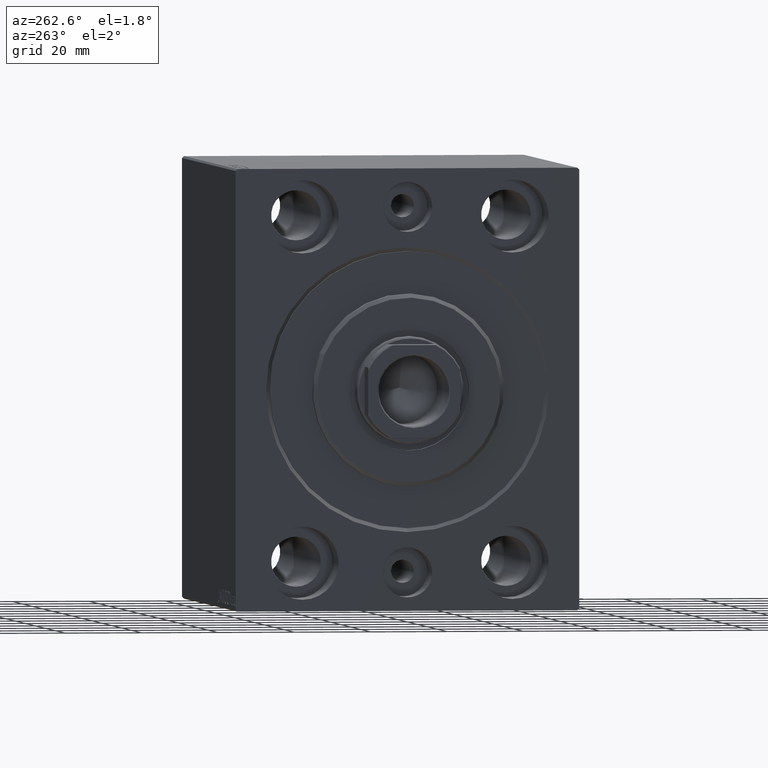
[diagram: clean part render]
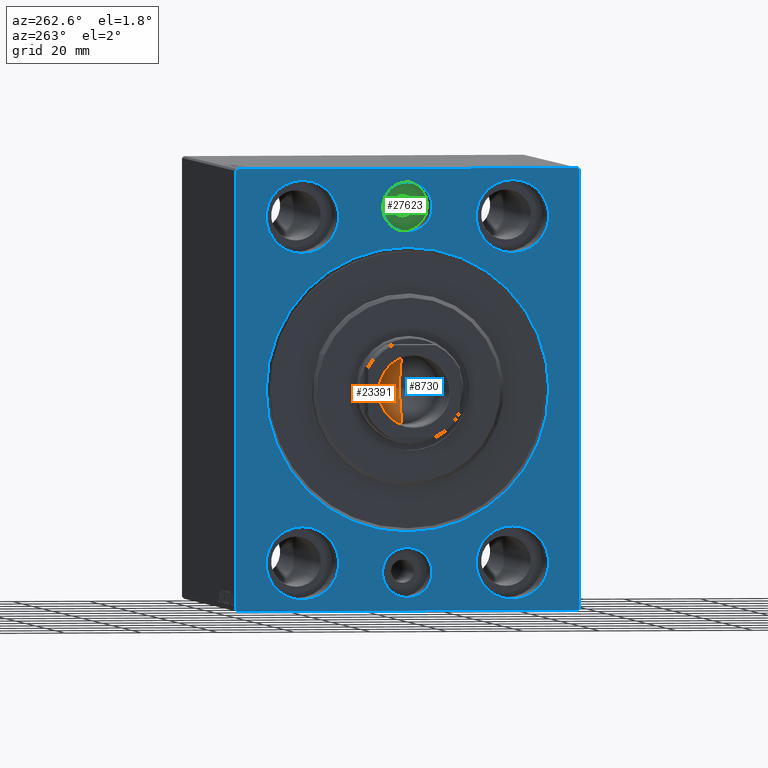
[diagram: same view with three faces highlighted in distinct colors, each labeled with its STEP entity id]
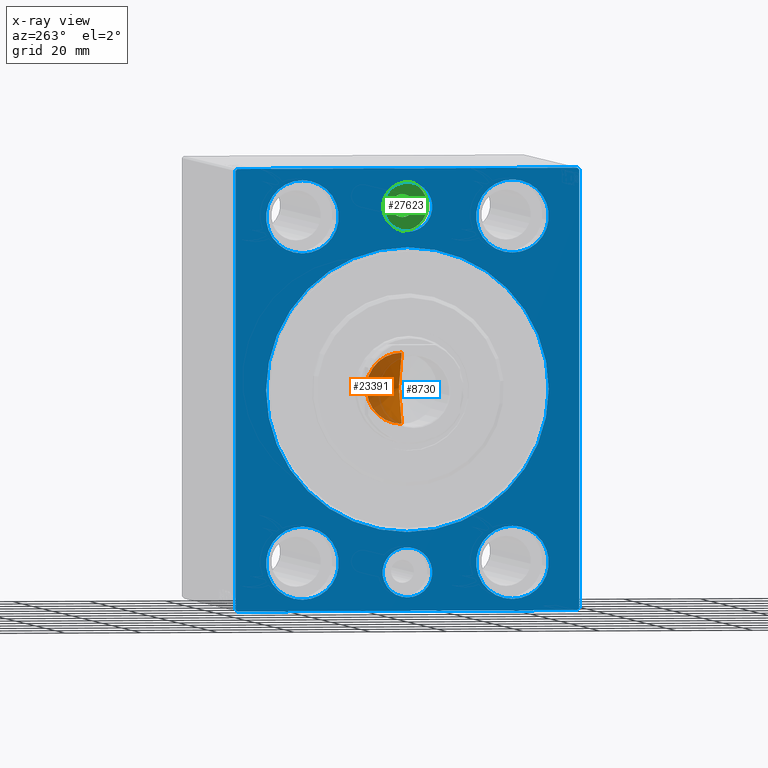
[diagram: x-ray of the same camera — body ghosted, the three highlighted faces saturated]
A machine part, auxiliary view with three faces highlighted in distinct colors.
The next image is the same camera in x-ray (body ghosted, the three faces saturated) — at least one of them is partly hidden behind the body in this view.
Their STEP definitions:

[orange] entity #23391 — the highlighted conical surface has half-angle 59 deg.
#786 = CARTESIAN_POINT ( 'NONE',  ( -6.793016015247754405E-15, 0.000000000000000000, 73.44203927399506426 ) ) ;
#4714 = CARTESIAN_POINT ( 'NONE',  ( 0.000000000000000000, 0.000000000000000000, 79.00000000000001421 ) ) ;
#4899 = CARTESIAN_POINT ( 'NONE',  ( 9.249999999999994671, 0.000000000000000000, 79.00000000000001421 ) ) ;
#6097 = CIRCLE ( 'NONE', #7571, 9.249999999999994671 ) ;
#7571 = AXIS2_PLACEMENT_3D ( 'NONE', #4714, #28193, #15127 ) ;
#8041 = DIRECTION ( 'NONE',  ( 0.8571673007021113344, 0.000000000000000000, 0.5150380749100558209 ) ) ;
#8346 = CARTESIAN_POINT ( 'NONE',  ( 0.000000000000000000, 0.000000000000000000, 79.00000000000001421 ) ) ;
#8839 = EDGE_CURVE ( 'NONE', #18739, #40652, #38784, .T. ) ;
#11118 = ORIENTED_EDGE ( 'NONE', *, *, #40584, .T. ) ;
#13972 = ORIENTED_EDGE ( 'NONE', *, *, #31500, .F. ) ;
#14583 = ORIENTED_EDGE ( 'NONE', *, *, #8839, .T. ) ;
#14916 = CARTESIAN_POINT ( 'NONE',  ( 9.249999999999994671, 0.000000000000000000, 79.00000000000001421 ) ) ;
#15127 = DIRECTION ( 'NONE',  ( 1.000000000000000000, 0.000000000000000000, 0.000000000000000000 ) ) ;
#15668 = VECTOR ( 'NONE', #8041, 1000.000000000000000 ) ;
#17538 = LINE ( 'NONE', #30836, #19331 ) ;
#18739 = VERTEX_POINT ( 'NONE', #786 ) ;
#19240 = CONICAL_SURFACE ( 'NONE', #41174, 9.249999999999994671, 1.029744258676652535 ) ;
#19331 = VECTOR ( 'NONE', #28154, 1000.000000000000000 ) ;
#21860 = DIRECTION ( 'NONE',  ( -0.000000000000000000, -0.000000000000000000, 1.000000000000000000 ) ) ;
#23391 = ADVANCED_FACE ( 'NONE', ( #26263 ), #19240, .F. ) ;
#26263 = FACE_OUTER_BOUND ( 'NONE', #42875, .T. ) ;
#28154 = DIRECTION ( 'NONE',  ( -0.8571673007021113344, 1.049727191138617463E-16, 0.5150380749100558209 ) ) ;
#28193 = DIRECTION ( 'NONE',  ( -0.000000000000000000, -0.000000000000000000, 1.000000000000000000 ) ) ;
#30836 = CARTESIAN_POINT ( 'NONE',  ( -9.249999999999994671, 1.132798289211300909E-15, 79.00000000000001421 ) ) ;
#31500 = EDGE_CURVE ( 'NONE', #18739, #40047, #17538, .T. ) ;
#35170 = CARTESIAN_POINT ( 'NONE',  ( -9.249999999999994671, 1.132798289211300909E-15, 79.00000000000001421 ) ) ;
#35575 = DIRECTION ( 'NONE',  ( 1.000000000000000000, 0.000000000000000000, 0.000000000000000000 ) ) ;
#38784 = LINE ( 'NONE', #4899, #15668 ) ;
#40047 = VERTEX_POINT ( 'NONE', #35170 ) ;
#40584 = EDGE_CURVE ( 'NONE', #40652, #40047, #6097, .T. ) ;
#40652 = VERTEX_POINT ( 'NONE', #14916 ) ;
#41174 = AXIS2_PLACEMENT_3D ( 'NONE', #8346, #21860, #35575 ) ;
#42875 = EDGE_LOOP ( 'NONE', ( #13972, #14583, #11118 ) ) ;

[blue] entity #8730 — the highlighted planar face has unit normal (1, 0, 0).
#274 = FACE_BOUND ( 'NONE', #2314, .T. ) ;
#555 = EDGE_CURVE ( 'NONE', #18751, #18843, #31837, .T. ) ;
#625 = DIRECTION ( 'NONE',  ( 1.000000000000000000, 0.000000000000000000, 0.000000000000000000 ) ) ;
#1473 = CARTESIAN_POINT ( 'NONE',  ( 0.000000000000000000, 44.50000000000002842, 57.50000000000000711 ) ) ;
#1654 = EDGE_CURVE ( 'NONE', #12995, #6017, #17186, .T. ) ;
#1664 = ORIENTED_EDGE ( 'NONE', *, *, #23648, .T. ) ;
#1771 = CIRCLE ( 'NONE', #42106, 37.00000000000003553 ) ;
#1886 = EDGE_CURVE ( 'NONE', #33853, #25493, #27630, .T. ) ;
#1914 = CARTESIAN_POINT ( 'NONE',  ( 0.000000000000000000, 0.000000000000000000, -47.50000000000000000 ) ) ;
#2314 = EDGE_LOOP ( 'NONE', ( #26661, #33691 ) ) ;
#2386 = CARTESIAN_POINT ( 'NONE',  ( 0.000000000000000000, -45.00000000000000000, 56.99999999999999289 ) ) ;
#2541 = EDGE_CURVE ( 'NONE', #12102, #13861, #17046, .T. ) ;
#3154 = FACE_BOUND ( 'NONE', #30305, .T. ) ;
#3364 = ORIENTED_EDGE ( 'NONE', *, *, #2541, .F. ) ;
#3538 = CARTESIAN_POINT ( 'NONE',  ( 0.000000000000000000, -27.50000000000000000, -44.99999999999998579 ) ) ;
#3594 = VERTEX_POINT ( 'NONE', #22149 ) ;
#3775 = VERTEX_POINT ( 'NONE', #2386 ) ;
#3909 = AXIS2_PLACEMENT_3D ( 'NONE', #41939, #11417, #21798 ) ;
#3921 = LINE ( 'NONE', #4139, #13862 ) ;
#4139 = CARTESIAN_POINT ( 'NONE',  ( 0.000000000000000000, -45.00000000000000000, 56.99999999999999289 ) ) ;
#4561 = AXIS2_PLACEMENT_3D ( 'NONE', #27009, #9977, #23259 ) ;
#4814 = CARTESIAN_POINT ( 'NONE',  ( 0.000000000000000000, 0.000000000000000000, 47.50000000000000000 ) ) ;
#4991 = DIRECTION ( 'NONE',  ( 0.000000000000000000, 0.000000000000000000, 1.000000000000000000 ) ) ;
#5104 = CIRCLE ( 'NONE', #29882, 9.500000000000001776 ) ;
#5275 = AXIS2_PLACEMENT_3D ( 'NONE', #1914, #29181, #42458 ) ;
#5380 = ORIENTED_EDGE ( 'NONE', *, *, #11751, .F. ) ;
#5520 = CARTESIAN_POINT ( 'NONE',  ( 0.000000000000000000, 7.960204194457798435E-16, 41.00000000000000000 ) ) ;
#5552 = DIRECTION ( 'NONE',  ( -0.000000000000000000, 0.7071067811865474617, -0.7071067811865474617 ) ) ;
#5675 = ORIENTED_EDGE ( 'NONE', *, *, #26332, .F. ) ;
#5812 = CIRCLE ( 'NONE', #41207, 9.500000000000001776 ) ;
#6003 = LINE ( 'NONE', #43191, #32739 ) ;
#6017 = VERTEX_POINT ( 'NONE', #7673 ) ;
#6741 = AXIS2_PLACEMENT_3D ( 'NONE', #22505, #31814, #4991 ) ;
#6874 = DIRECTION ( 'NONE',  ( -1.000000000000000000, 0.000000000000000000, 0.000000000000000000 ) ) ;
#7083 = VERTEX_POINT ( 'NONE', #10976 ) ;
#7131 = DIRECTION ( 'NONE',  ( 1.000000000000000000, 0.000000000000000000, 0.000000000000000000 ) ) ;
#7202 = CARTESIAN_POINT ( 'NONE',  ( 0.000000000000000000, 45.00000000000000000, 57.50000000000000711 ) ) ;
#7208 = AXIS2_PLACEMENT_3D ( 'NONE', #4814, #38698, #15228 ) ;
#7426 = DIRECTION ( 'NONE',  ( 0.000000000000000000, -1.000000000000000000, -1.541976423090495387E-16 ) ) ;
#7451 = CARTESIAN_POINT ( 'NONE',  ( 0.000000000000000000, -27.49999999999998934, 35.50000000000000711 ) ) ;
#7467 = EDGE_LOOP ( 'NONE', ( #34806, #24155 ) ) ;
#7614 = LINE ( 'NONE', #40619, #41961 ) ;
#7673 = CARTESIAN_POINT ( 'NONE',  ( 0.000000000000000000, -44.49999999999997158, 57.49999999999999289 ) ) ;
#7912 = ORIENTED_EDGE ( 'NONE', *, *, #28082, .F. ) ;
#8203 = LINE ( 'NONE', #34786, #14603 ) ;
#8730 = ADVANCED_FACE ( 'NONE', ( #33522, #16685, #27752, #274, #3154, #41255, #30205, #23331 ), #36835, .F. ) ;
#8947 = VERTEX_POINT ( 'NONE', #23510 ) ;
#8975 = EDGE_CURVE ( 'NONE', #17900, #13359, #17800, .T. ) ;
#9509 = DIRECTION ( 'NONE',  ( 0.000000000000000000, 0.000000000000000000, 1.000000000000000000 ) ) ;
#9545 = DIRECTION ( 'NONE',  ( 0.000000000000000000, -0.7071067811865474617, -0.7071067811865474617 ) ) ;
#9798 = DIRECTION ( 'NONE',  ( -1.000000000000000000, 0.000000000000000000, 0.000000000000000000 ) ) ;
#9886 = ORIENTED_EDGE ( 'NONE', *, *, #35781, .F. ) ;
#9977 = DIRECTION ( 'NONE',  ( -1.000000000000000000, 0.000000000000000000, 0.000000000000000000 ) ) ;
#9988 = CARTESIAN_POINT ( 'NONE',  ( 0.000000000000000000, -45.00000000000000000, -57.00000000000003553 ) ) ;
#10059 = DIRECTION ( 'NONE',  ( 1.000000000000000000, 0.000000000000000000, 0.000000000000000000 ) ) ;
#10842 = AXIS2_PLACEMENT_3D ( 'NONE', #40112, #9798, #20201 ) ;
#10899 = CARTESIAN_POINT ( 'NONE',  ( 0.000000000000000000, 44.50000000000001421, -57.50000000000000711 ) ) ;
#10976 = CARTESIAN_POINT ( 'NONE',  ( 0.000000000000000000, 45.00000000000000000, 57.00000000000000711 ) ) ;
#11153 = VERTEX_POINT ( 'NONE', #5520 ) ;
#11200 = ORIENTED_EDGE ( 'NONE', *, *, #11208, .F. ) ;
#11208 = EDGE_CURVE ( 'NONE', #19509, #29865, #30548, .T. ) ;
#11417 = DIRECTION ( 'NONE',  ( -1.000000000000000000, 0.000000000000000000, 0.000000000000000000 ) ) ;
#11419 = VERTEX_POINT ( 'NONE', #32060 ) ;
#11665 = DIRECTION ( 'NONE',  ( 0.000000000000000000, 0.000000000000000000, 1.000000000000000000 ) ) ;
#11673 = CARTESIAN_POINT ( 'NONE',  ( 0.000000000000000000, -27.49999999999998934, 54.50000000000000711 ) ) ;
#11751 = EDGE_CURVE ( 'NONE', #13861, #12102, #5104, .T. ) ;
#12102 = VERTEX_POINT ( 'NONE', #36319 ) ;
#12283 = EDGE_LOOP ( 'NONE', ( #15758, #27923, #14285, #1664, #37512, #18039, #11200, #26456 ) ) ;
#12642 = EDGE_CURVE ( 'NONE', #8947, #11419, #29914, .T. ) ;
#12841 = AXIS2_PLACEMENT_3D ( 'NONE', #43694, #10059, #23563 ) ;
#12995 = VERTEX_POINT ( 'NONE', #1473 ) ;
#13138 = DIRECTION ( 'NONE',  ( 0.000000000000000000, 0.000000000000000000, -1.000000000000000000 ) ) ;
#13285 = DIRECTION ( 'NONE',  ( 0.000000000000000000, 1.000000000000000000, 0.000000000000000000 ) ) ;
#13359 = VERTEX_POINT ( 'NONE', #36586 ) ;
#13516 = CARTESIAN_POINT ( 'NONE',  ( 0.000000000000000000, 0.000000000000000000, 0.000000000000000000 ) ) ;
#13799 = EDGE_CURVE ( 'NONE', #11419, #8947, #39203, .T. ) ;
#13861 = VERTEX_POINT ( 'NONE', #27449 ) ;
#13862 = VECTOR ( 'NONE', #24102, 1000.000000000000114 ) ;
#14285 = ORIENTED_EDGE ( 'NONE', *, *, #1654, .F. ) ;
#14603 = VECTOR ( 'NONE', #34571, 1000.000000000000114 ) ;
#14947 = VECTOR ( 'NONE', #33915, 1000.000000000000000 ) ;
#15228 = DIRECTION ( 'NONE',  ( 0.000000000000000000, 0.000000000000000000, 1.000000000000000000 ) ) ;
#15758 = ORIENTED_EDGE ( 'NONE', *, *, #26736, .F. ) ;
#16076 = ORIENTED_EDGE ( 'NONE', *, *, #1886, .F. ) ;
#16577 = DIRECTION ( 'NONE',  ( 0.000000000000000000, 0.000000000000000000, 1.000000000000000000 ) ) ;
#16620 = DIRECTION ( 'NONE',  ( 0.000000000000000000, 0.000000000000000000, 1.000000000000000000 ) ) ;
#16685 = FACE_BOUND ( 'NONE', #19304, .T. ) ;
#17046 = CIRCLE ( 'NONE', #38931, 9.500000000000001776 ) ;
#17186 = LINE ( 'NONE', #7202, #29038 ) ;
#17800 = CIRCLE ( 'NONE', #26997, 6.499999999999999112 ) ;
#17900 = VERTEX_POINT ( 'NONE', #23636 ) ;
#18039 = ORIENTED_EDGE ( 'NONE', *, *, #41727, .T. ) ;
#18751 = VERTEX_POINT ( 'NONE', #7451 ) ;
#18782 = VERTEX_POINT ( 'NONE', #25377 ) ;
#18843 = VERTEX_POINT ( 'NONE', #11673 ) ;
#19304 = EDGE_LOOP ( 'NONE', ( #9886, #5675 ) ) ;
#19509 = VERTEX_POINT ( 'NONE', #33451 ) ;
#19538 = VERTEX_POINT ( 'NONE', #9988 ) ;
#19609 = CIRCLE ( 'NONE', #36552, 37.00000000000003553 ) ;
#20201 = DIRECTION ( 'NONE',  ( 0.000000000000000000, 0.000000000000000000, 1.000000000000000000 ) ) ;
#20403 = DIRECTION ( 'NONE',  ( 0.000000000000000000, 0.000000000000000000, 1.000000000000000000 ) ) ;
#20413 = CARTESIAN_POINT ( 'NONE',  ( 0.000000000000000000, 45.00000000000001421, -57.50000000000000711 ) ) ;
#20472 = DIRECTION ( 'NONE',  ( 0.000000000000000000, 0.000000000000000000, -1.000000000000000000 ) ) ;
#20593 = EDGE_CURVE ( 'NONE', #43087, #7083, #24830, .T. ) ;
#21798 = DIRECTION ( 'NONE',  ( 0.000000000000000000, 0.000000000000000000, 1.000000000000000000 ) ) ;
#22032 = ORIENTED_EDGE ( 'NONE', *, *, #36989, .T. ) ;
#22149 = CARTESIAN_POINT ( 'NONE',  ( 0.000000000000000000, 0.000000000000000000, 54.00000000000000000 ) ) ;
#22329 = EDGE_LOOP ( 'NONE', ( #7912, #16076 ) ) ;
#22505 = CARTESIAN_POINT ( 'NONE',  ( 0.000000000000000000, 0.000000000000000000, 47.50000000000000000 ) ) ;
#23259 = DIRECTION ( 'NONE',  ( 0.000000000000000000, 0.000000000000000000, 1.000000000000000000 ) ) ;
#23264 = LINE ( 'NONE', #36328, #37289 ) ;
#23331 = FACE_OUTER_BOUND ( 'NONE', #12283, .T. ) ;
#23434 = EDGE_LOOP ( 'NONE', ( #3364, #5380 ) ) ;
#23510 = CARTESIAN_POINT ( 'NONE',  ( 0.000000000000000000, 27.49999999999998934, -35.49999999999998579 ) ) ;
#23563 = DIRECTION ( 'NONE',  ( 0.000000000000000000, 0.000000000000000000, -1.000000000000000000 ) ) ;
#23636 = CARTESIAN_POINT ( 'NONE',  ( 0.000000000000000000, 7.960204194457798435E-16, -54.00000000000000000 ) ) ;
#23648 = EDGE_CURVE ( 'NONE', #12995, #7083, #6003, .T. ) ;
#24102 = DIRECTION ( 'NONE',  ( -0.000000000000000000, 0.7071067811865474617, 0.7071067811865474617 ) ) ;
#24155 = ORIENTED_EDGE ( 'NONE', *, *, #8975, .F. ) ;
#24662 = VERTEX_POINT ( 'NONE', #29097 ) ;
#24830 = LINE ( 'NONE', #20413, #14947 ) ;
#24961 = VECTOR ( 'NONE', #13285, 1000.000000000000000 ) ;
#25240 = CARTESIAN_POINT ( 'NONE',  ( 0.000000000000000000, -27.49999999999998934, 45.00000000000000711 ) ) ;
#25282 = ORIENTED_EDGE ( 'NONE', *, *, #36783, .F. ) ;
#25377 = CARTESIAN_POINT ( 'NONE',  ( 0.000000000000000000, 4.531193156845210737E-15, -37.00000000000003553 ) ) ;
#25411 = ORIENTED_EDGE ( 'NONE', *, *, #41917, .T. ) ;
#25493 = VERTEX_POINT ( 'NONE', #26928 ) ;
#26332 = EDGE_CURVE ( 'NONE', #11153, #3594, #27745, .T. ) ;
#26456 = ORIENTED_EDGE ( 'NONE', *, *, #39266, .T. ) ;
#26661 = ORIENTED_EDGE ( 'NONE', *, *, #12642, .F. ) ;
#26736 = EDGE_CURVE ( 'NONE', #3775, #19538, #7614, .T. ) ;
#26928 = CARTESIAN_POINT ( 'NONE',  ( 0.000000000000000000, 27.50000000000001066, 54.50000000000000711 ) ) ;
#26997 = AXIS2_PLACEMENT_3D ( 'NONE', #40550, #30157, #30591 ) ;
#27009 = CARTESIAN_POINT ( 'NONE',  ( 0.000000000000000000, 27.49999999999998934, -44.99999999999998579 ) ) ;
#27449 = CARTESIAN_POINT ( 'NONE',  ( 0.000000000000000000, -27.50000000000000000, -54.49999999999998579 ) ) ;
#27630 = CIRCLE ( 'NONE', #31868, 9.500000000000001776 ) ;
#27745 = CIRCLE ( 'NONE', #7208, 6.499999999999999112 ) ;
#27752 = FACE_BOUND ( 'NONE', #30739, .T. ) ;
#27923 = ORIENTED_EDGE ( 'NONE', *, *, #38579, .T. ) ;
#28082 = EDGE_CURVE ( 'NONE', #25493, #33853, #5812, .T. ) ;
#29038 = VECTOR ( 'NONE', #7426, 1000.000000000000000 ) ;
#29097 = CARTESIAN_POINT ( 'NONE',  ( 0.000000000000000000, 0.000000000000000000, 37.00000000000003553 ) ) ;
#29181 = DIRECTION ( 'NONE',  ( -1.000000000000000000, 0.000000000000000000, 0.000000000000000000 ) ) ;
#29865 = VERTEX_POINT ( 'NONE', #10899 ) ;
#29882 = AXIS2_PLACEMENT_3D ( 'NONE', #32660, #31799, #11665 ) ;
#29914 = CIRCLE ( 'NONE', #10842, 9.500000000000001776 ) ;
#30157 = DIRECTION ( 'NONE',  ( -1.000000000000000000, 0.000000000000000000, 0.000000000000000000 ) ) ;
#30205 = FACE_BOUND ( 'NONE', #23434, .T. ) ;
#30305 = EDGE_LOOP ( 'NONE', ( #25282, #35414 ) ) ;
#30548 = LINE ( 'NONE', #40279, #24961 ) ;
#30591 = DIRECTION ( 'NONE',  ( 0.000000000000000000, 0.000000000000000000, 1.000000000000000000 ) ) ;
#30739 = EDGE_LOOP ( 'NONE', ( #22032, #25411 ) ) ;
#31215 = DIRECTION ( 'NONE',  ( 0.000000000000000000, 0.000000000000000000, -1.000000000000000000 ) ) ;
#31799 = DIRECTION ( 'NONE',  ( -1.000000000000000000, 0.000000000000000000, 0.000000000000000000 ) ) ;
#31814 = DIRECTION ( 'NONE',  ( -1.000000000000000000, 0.000000000000000000, 0.000000000000000000 ) ) ;
#31837 = CIRCLE ( 'NONE', #36798, 9.500000000000001776 ) ;
#31868 = AXIS2_PLACEMENT_3D ( 'NONE', #35628, #32753, #9509 ) ;
#32060 = CARTESIAN_POINT ( 'NONE',  ( 0.000000000000000000, 27.49999999999998934, -54.49999999999998579 ) ) ;
#32660 = CARTESIAN_POINT ( 'NONE',  ( 0.000000000000000000, -27.50000000000000000, -44.99999999999998579 ) ) ;
#32739 = VECTOR ( 'NONE', #5552, 1000.000000000000114 ) ;
#32753 = DIRECTION ( 'NONE',  ( -1.000000000000000000, 0.000000000000000000, 0.000000000000000000 ) ) ;
#32795 = CARTESIAN_POINT ( 'NONE',  ( 0.000000000000000000, 27.50000000000001066, 45.00000000000000711 ) ) ;
#32890 = CIRCLE ( 'NONE', #6741, 6.499999999999999112 ) ;
#33451 = CARTESIAN_POINT ( 'NONE',  ( 0.000000000000000000, -44.50000000000002842, -57.50000000000000711 ) ) ;
#33522 = FACE_BOUND ( 'NONE', #7467, .T. ) ;
#33691 = ORIENTED_EDGE ( 'NONE', *, *, #13799, .F. ) ;
#33853 = VERTEX_POINT ( 'NONE', #39162 ) ;
#33915 = DIRECTION ( 'NONE',  ( 0.000000000000000000, -1.206764157201257045E-16, 1.000000000000000000 ) ) ;
#34365 = CIRCLE ( 'NONE', #3909, 9.500000000000001776 ) ;
#34571 = DIRECTION ( 'NONE',  ( -0.000000000000000000, -0.7071067811865474617, 0.7071067811865474617 ) ) ;
#34786 = CARTESIAN_POINT ( 'NONE',  ( 0.000000000000000000, -44.50000000000002842, -57.50000000000000711 ) ) ;
#34806 = ORIENTED_EDGE ( 'NONE', *, *, #34939, .F. ) ;
#34939 = EDGE_CURVE ( 'NONE', #13359, #17900, #34986, .T. ) ;
#34986 = CIRCLE ( 'NONE', #5275, 6.499999999999999112 ) ;
#35414 = ORIENTED_EDGE ( 'NONE', *, *, #555, .F. ) ;
#35628 = CARTESIAN_POINT ( 'NONE',  ( 0.000000000000000000, 27.50000000000001066, 45.00000000000000711 ) ) ;
#35781 = EDGE_CURVE ( 'NONE', #3594, #11153, #32890, .T. ) ;
#36110 = CARTESIAN_POINT ( 'NONE',  ( 0.000000000000000000, 45.00000000000001421, -57.00000000000003553 ) ) ;
#36319 = CARTESIAN_POINT ( 'NONE',  ( 0.000000000000000000, -27.50000000000000000, -35.49999999999998579 ) ) ;
#36328 = CARTESIAN_POINT ( 'NONE',  ( 0.000000000000000000, 45.00000000000001421, -57.00000000000003553 ) ) ;
#36331 = DIRECTION ( 'NONE',  ( -1.000000000000000000, 0.000000000000000000, 0.000000000000000000 ) ) ;
#36552 = AXIS2_PLACEMENT_3D ( 'NONE', #13516, #625, #31215 ) ;
#36586 = CARTESIAN_POINT ( 'NONE',  ( 0.000000000000000000, 0.000000000000000000, -41.00000000000000000 ) ) ;
#36783 = EDGE_CURVE ( 'NONE', #18843, #18751, #34365, .T. ) ;
#36798 = AXIS2_PLACEMENT_3D ( 'NONE', #25240, #38729, #16577 ) ;
#36835 = PLANE ( 'NONE',  #12841 ) ;
#36989 = EDGE_CURVE ( 'NONE', #24662, #18782, #1771, .T. ) ;
#37289 = VECTOR ( 'NONE', #9545, 1000.000000000000114 ) ;
#37481 = CARTESIAN_POINT ( 'NONE',  ( 0.000000000000000000, 0.000000000000000000, 0.000000000000000000 ) ) ;
#37512 = ORIENTED_EDGE ( 'NONE', *, *, #20593, .F. ) ;
#38579 = EDGE_CURVE ( 'NONE', #3775, #6017, #3921, .T. ) ;
#38698 = DIRECTION ( 'NONE',  ( -1.000000000000000000, 0.000000000000000000, 0.000000000000000000 ) ) ;
#38729 = DIRECTION ( 'NONE',  ( -1.000000000000000000, 0.000000000000000000, 0.000000000000000000 ) ) ;
#38931 = AXIS2_PLACEMENT_3D ( 'NONE', #3538, #6874, #20403 ) ;
#39162 = CARTESIAN_POINT ( 'NONE',  ( 0.000000000000000000, 27.50000000000001066, 35.50000000000000711 ) ) ;
#39203 = CIRCLE ( 'NONE', #4561, 9.500000000000001776 ) ;
#39266 = EDGE_CURVE ( 'NONE', #19509, #19538, #8203, .T. ) ;
#40112 = CARTESIAN_POINT ( 'NONE',  ( 0.000000000000000000, 27.49999999999998934, -44.99999999999998579 ) ) ;
#40279 = CARTESIAN_POINT ( 'NONE',  ( 0.000000000000000000, -45.00000000000000000, -57.50000000000000711 ) ) ;
#40550 = CARTESIAN_POINT ( 'NONE',  ( 0.000000000000000000, 0.000000000000000000, -47.50000000000000000 ) ) ;
#40619 = CARTESIAN_POINT ( 'NONE',  ( 0.000000000000000000, -45.00000000000000000, 57.49999999999999289 ) ) ;
#41207 = AXIS2_PLACEMENT_3D ( 'NONE', #32795, #36331, #16620 ) ;
#41255 = FACE_BOUND ( 'NONE', #22329, .T. ) ;
#41727 = EDGE_CURVE ( 'NONE', #43087, #29865, #23264, .T. ) ;
#41917 = EDGE_CURVE ( 'NONE', #18782, #24662, #19609, .T. ) ;
#41939 = CARTESIAN_POINT ( 'NONE',  ( 0.000000000000000000, -27.49999999999998934, 45.00000000000000711 ) ) ;
#41961 = VECTOR ( 'NONE', #20472, 1000.000000000000000 ) ;
#42106 = AXIS2_PLACEMENT_3D ( 'NONE', #37481, #7131, #13138 ) ;
#42458 = DIRECTION ( 'NONE',  ( 0.000000000000000000, 0.000000000000000000, 1.000000000000000000 ) ) ;
#43087 = VERTEX_POINT ( 'NONE', #36110 ) ;
#43191 = CARTESIAN_POINT ( 'NONE',  ( 0.000000000000000000, 44.50000000000002842, 57.50000000000000711 ) ) ;
#43694 = CARTESIAN_POINT ( 'NONE',  ( 0.000000000000000000, 0.000000000000000000, 0.000000000000000000 ) ) ;

[green] entity #27623 — the highlighted planar face has unit normal (-1, 0, 0).
#539 = VERTEX_POINT ( 'NONE', #39594 ) ;
#895 = ORIENTED_EDGE ( 'NONE', *, *, #40372, .F. ) ;
#1537 = CARTESIAN_POINT ( 'NONE',  ( 10.00000000000000000, 0.000000000000000000, 47.50000000000000000 ) ) ;
#2322 = VERTEX_POINT ( 'NONE', #38993 ) ;
#4083 = VERTEX_POINT ( 'NONE', #18535 ) ;
#5197 = DIRECTION ( 'NONE',  ( -1.000000000000000000, 0.000000000000000000, 0.000000000000000000 ) ) ;
#6522 = CARTESIAN_POINT ( 'NONE',  ( 10.00000000000000000, 0.000000000000000000, 47.50000000000000000 ) ) ;
#6980 = EDGE_CURVE ( 'NONE', #539, #2322, #7876, .T. ) ;
#7876 = CIRCLE ( 'NONE', #24869, 3.000000000000002665 ) ;
#8747 = AXIS2_PLACEMENT_3D ( 'NONE', #1537, #38344, #27943 ) ;
#9646 = FACE_OUTER_BOUND ( 'NONE', #35250, .T. ) ;
#10086 = FACE_BOUND ( 'NONE', #19800, .T. ) ;
#10267 = EDGE_CURVE ( 'NONE', #4083, #29612, #31957, .T. ) ;
#11846 = ORIENTED_EDGE ( 'NONE', *, *, #27138, .T. ) ;
#16817 = DIRECTION ( 'NONE',  ( -1.000000000000000000, 0.000000000000000000, 0.000000000000000000 ) ) ;
#18277 = CARTESIAN_POINT ( 'NONE',  ( 10.00000000000000000, 0.000000000000000000, 47.50000000000000000 ) ) ;
#18535 = CARTESIAN_POINT ( 'NONE',  ( 10.00000000000000000, 7.960204194457798435E-16, 41.00000000000000000 ) ) ;
#19485 = CARTESIAN_POINT ( 'NONE',  ( 10.00000000000000000, 0.000000000000000000, 47.50000000000000000 ) ) ;
#19800 = EDGE_LOOP ( 'NONE', ( #36452, #895 ) ) ;
#20929 = CARTESIAN_POINT ( 'NONE',  ( 10.00000000000000000, 0.000000000000000000, 47.50000000000000000 ) ) ;
#21711 = AXIS2_PLACEMENT_3D ( 'NONE', #18277, #5197, #42615 ) ;
#23152 = PLANE ( 'NONE',  #27772 ) ;
#23368 = DIRECTION ( 'NONE',  ( -1.000000000000000000, 0.000000000000000000, 0.000000000000000000 ) ) ;
#24869 = AXIS2_PLACEMENT_3D ( 'NONE', #20929, #23368, #33775 ) ;
#27138 = EDGE_CURVE ( 'NONE', #29612, #4083, #41170, .T. ) ;
#27623 = ADVANCED_FACE ( 'NONE', ( #10086, #9646 ), #23152, .T. ) ;
#27772 = AXIS2_PLACEMENT_3D ( 'NONE', #6522, #43723, #33769 ) ;
#27943 = DIRECTION ( 'NONE',  ( 0.000000000000000000, 0.000000000000000000, 1.000000000000000000 ) ) ;
#28047 = CIRCLE ( 'NONE', #21711, 3.000000000000002665 ) ;
#29612 = VERTEX_POINT ( 'NONE', #37499 ) ;
#31957 = CIRCLE ( 'NONE', #37627, 6.499999999999999112 ) ;
#32706 = ORIENTED_EDGE ( 'NONE', *, *, #10267, .T. ) ;
#33425 = DIRECTION ( 'NONE',  ( 0.000000000000000000, 0.000000000000000000, 1.000000000000000000 ) ) ;
#33769 = DIRECTION ( 'NONE',  ( 0.000000000000000000, 0.000000000000000000, 1.000000000000000000 ) ) ;
#33775 = DIRECTION ( 'NONE',  ( 0.000000000000000000, 0.000000000000000000, 1.000000000000000000 ) ) ;
#35250 = EDGE_LOOP ( 'NONE', ( #11846, #32706 ) ) ;
#36452 = ORIENTED_EDGE ( 'NONE', *, *, #6980, .F. ) ;
#37499 = CARTESIAN_POINT ( 'NONE',  ( 10.00000000000000000, 0.000000000000000000, 54.00000000000000000 ) ) ;
#37627 = AXIS2_PLACEMENT_3D ( 'NONE', #19485, #16817, #33425 ) ;
#38344 = DIRECTION ( 'NONE',  ( -1.000000000000000000, 0.000000000000000000, 0.000000000000000000 ) ) ;
#38993 = CARTESIAN_POINT ( 'NONE',  ( 10.00000000000000000, 3.673940397442059868E-16, 44.50000000000000000 ) ) ;
#39594 = CARTESIAN_POINT ( 'NONE',  ( 10.00000000000000000, 0.000000000000000000, 50.50000000000000000 ) ) ;
#40372 = EDGE_CURVE ( 'NONE', #2322, #539, #28047, .T. ) ;
#41170 = CIRCLE ( 'NONE', #8747, 6.499999999999999112 ) ;
#42615 = DIRECTION ( 'NONE',  ( 0.000000000000000000, 0.000000000000000000, 1.000000000000000000 ) ) ;
#43723 = DIRECTION ( 'NONE',  ( -1.000000000000000000, 0.000000000000000000, 0.000000000000000000 ) ) ;